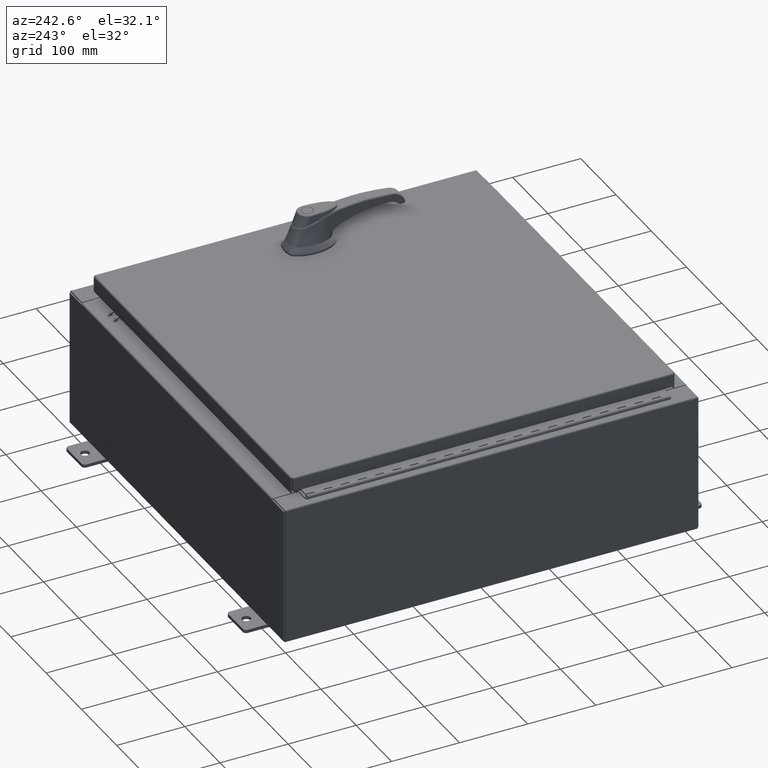
[diagram: clean part render]
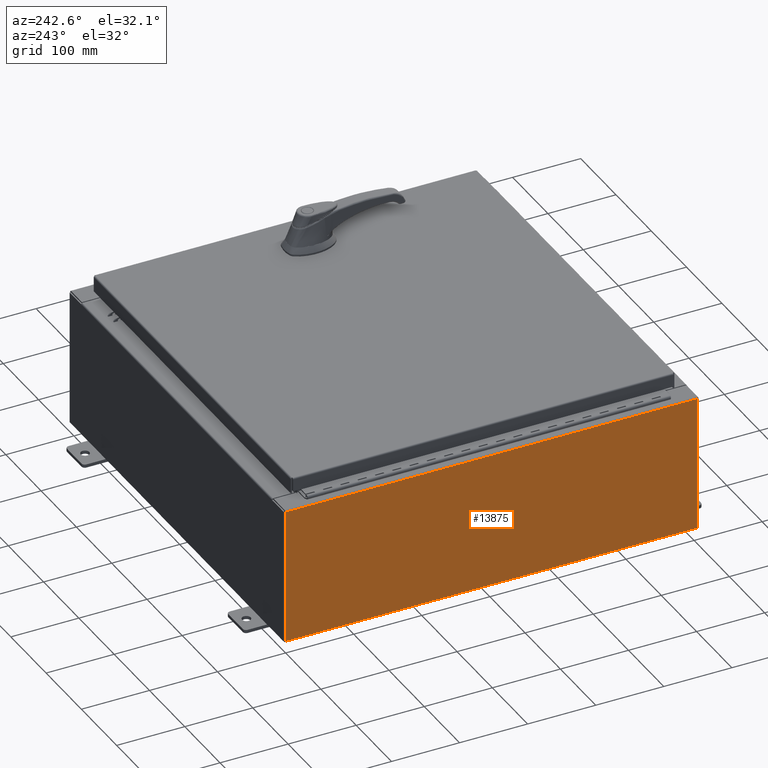
[diagram: same view with one face highlighted and labeled with its STEP entity id]
A machine part, auxiliary view. The second image highlights one B-rep face of the part: STEP entity #13875.
In plain terms, the highlighted planar face has unit normal (1, 0, 0).
Its self-contained STEP definition (entity closure, byte-faithful):
#13875 = ADVANCED_FACE ( 'NONE', ( #22498 ), #62435, .F. ) ;
#14393 = CARTESIAN_POINT ( 'NONE',  ( -12.00000000000000400, -11.92530000000000400, -4.327932773236202500E-014 ) ) ;
#18912 = VECTOR ( 'NONE', #23174, 39.37007874015748100 ) ;
#19163 = DIRECTION ( 'NONE',  ( 3.584876173029202900E-015, 0.0000000000000000000, -1.000000000000000000 ) ) ;
#22498 = FACE_OUTER_BOUND ( 'NONE', #61474, .T. ) ;
#23174 = DIRECTION ( 'NONE',  ( -3.584876173029202900E-015, 0.0000000000000000000, 1.000000000000000000 ) ) ;
#25023 = DIRECTION ( 'NONE',  ( 0.0000000000000000000, 1.000000000000000000, 0.0000000000000000000 ) ) ;
#32752 = DIRECTION ( 'NONE',  ( 3.584876173029202900E-015, 0.0000000000000000000, -1.000000000000000000 ) ) ;
#37422 = ORIENTED_EDGE ( 'NONE', *, *, #65010, .T. ) ;
#38148 = EDGE_CURVE ( 'NONE', #45207, #42670, #70180, .T. ) ;
#40457 = CARTESIAN_POINT ( 'NONE',  ( -12.00000000000000400, -11.92530000000000000, 0.01299999999999984700 ) ) ;
#41532 = CARTESIAN_POINT ( 'NONE',  ( -12.00000000000000400, 11.92529999999999800, -4.327932773236202500E-014 ) ) ;
#42220 = CARTESIAN_POINT ( 'NONE',  ( -12.00000000000003200, -11.92530000000000000, 7.837599999999999200 ) ) ;
#42670 = VERTEX_POINT ( 'NONE', #69828 ) ;
#45061 = CARTESIAN_POINT ( 'NONE',  ( -12.00000000000000400, 0.0000000000000000000, -4.327932773236202500E-014 ) ) ;
#45207 = VERTEX_POINT ( 'NONE', #110580 ) ;
#47194 = VECTOR ( 'NONE', #32752, 39.37007874015748100 ) ;
#47928 = VERTEX_POINT ( 'NONE', #40457 ) ;
#48766 = EDGE_CURVE ( 'NONE', #47928, #42670, #87897, .T. ) ;
#53468 = ORIENTED_EDGE ( 'NONE', *, *, #48766, .F. ) ;
#56947 = VERTEX_POINT ( 'NONE', #42220 ) ;
#57601 = AXIS2_PLACEMENT_3D ( 'NONE', #45061, #71131, #19163 ) ;
#59475 = ORIENTED_EDGE ( 'NONE', *, *, #38148, .T. ) ;
#61474 = EDGE_LOOP ( 'NONE', ( #90301, #59475, #53468, #37422 ) ) ;
#62435 = PLANE ( 'NONE',  #57601 ) ;
#64868 = VECTOR ( 'NONE', #75823, 39.37007874015748100 ) ;
#65010 = EDGE_CURVE ( 'NONE', #47928, #56947, #108356, .T. ) ;
#69828 = CARTESIAN_POINT ( 'NONE',  ( -12.00000000000000400, 11.92529999999999800, 0.01299999999999983600 ) ) ;
#70180 = LINE ( 'NONE', #41532, #47194 ) ;
#71131 = DIRECTION ( 'NONE',  ( 1.000000000000000000, 0.0000000000000000000, 3.584876173029202900E-015 ) ) ;
#75823 = DIRECTION ( 'NONE',  ( -0.0000000000000000000, 1.000000000000000000, -0.0000000000000000000 ) ) ;
#79546 = EDGE_CURVE ( 'NONE', #56947, #45207, #88684, .T. ) ;
#87897 = LINE ( 'NONE', #92849, #64868 ) ;
#88684 = LINE ( 'NONE', #111326, #111657 ) ;
#90301 = ORIENTED_EDGE ( 'NONE', *, *, #79546, .T. ) ;
#92849 = CARTESIAN_POINT ( 'NONE',  ( -12.00000000000000400, 11.92529999999999800, 0.01299999999999984700 ) ) ;
#108356 = LINE ( 'NONE', #14393, #18912 ) ;
#110580 = CARTESIAN_POINT ( 'NONE',  ( -12.00000000000003200, 11.92529999999999800, 7.837599999999999200 ) ) ;
#111326 = CARTESIAN_POINT ( 'NONE',  ( -12.00000000000003200, -11.92530000000000400, 7.837599999999999200 ) ) ;
#111657 = VECTOR ( 'NONE', #25023, 39.37007874015748100 ) ;